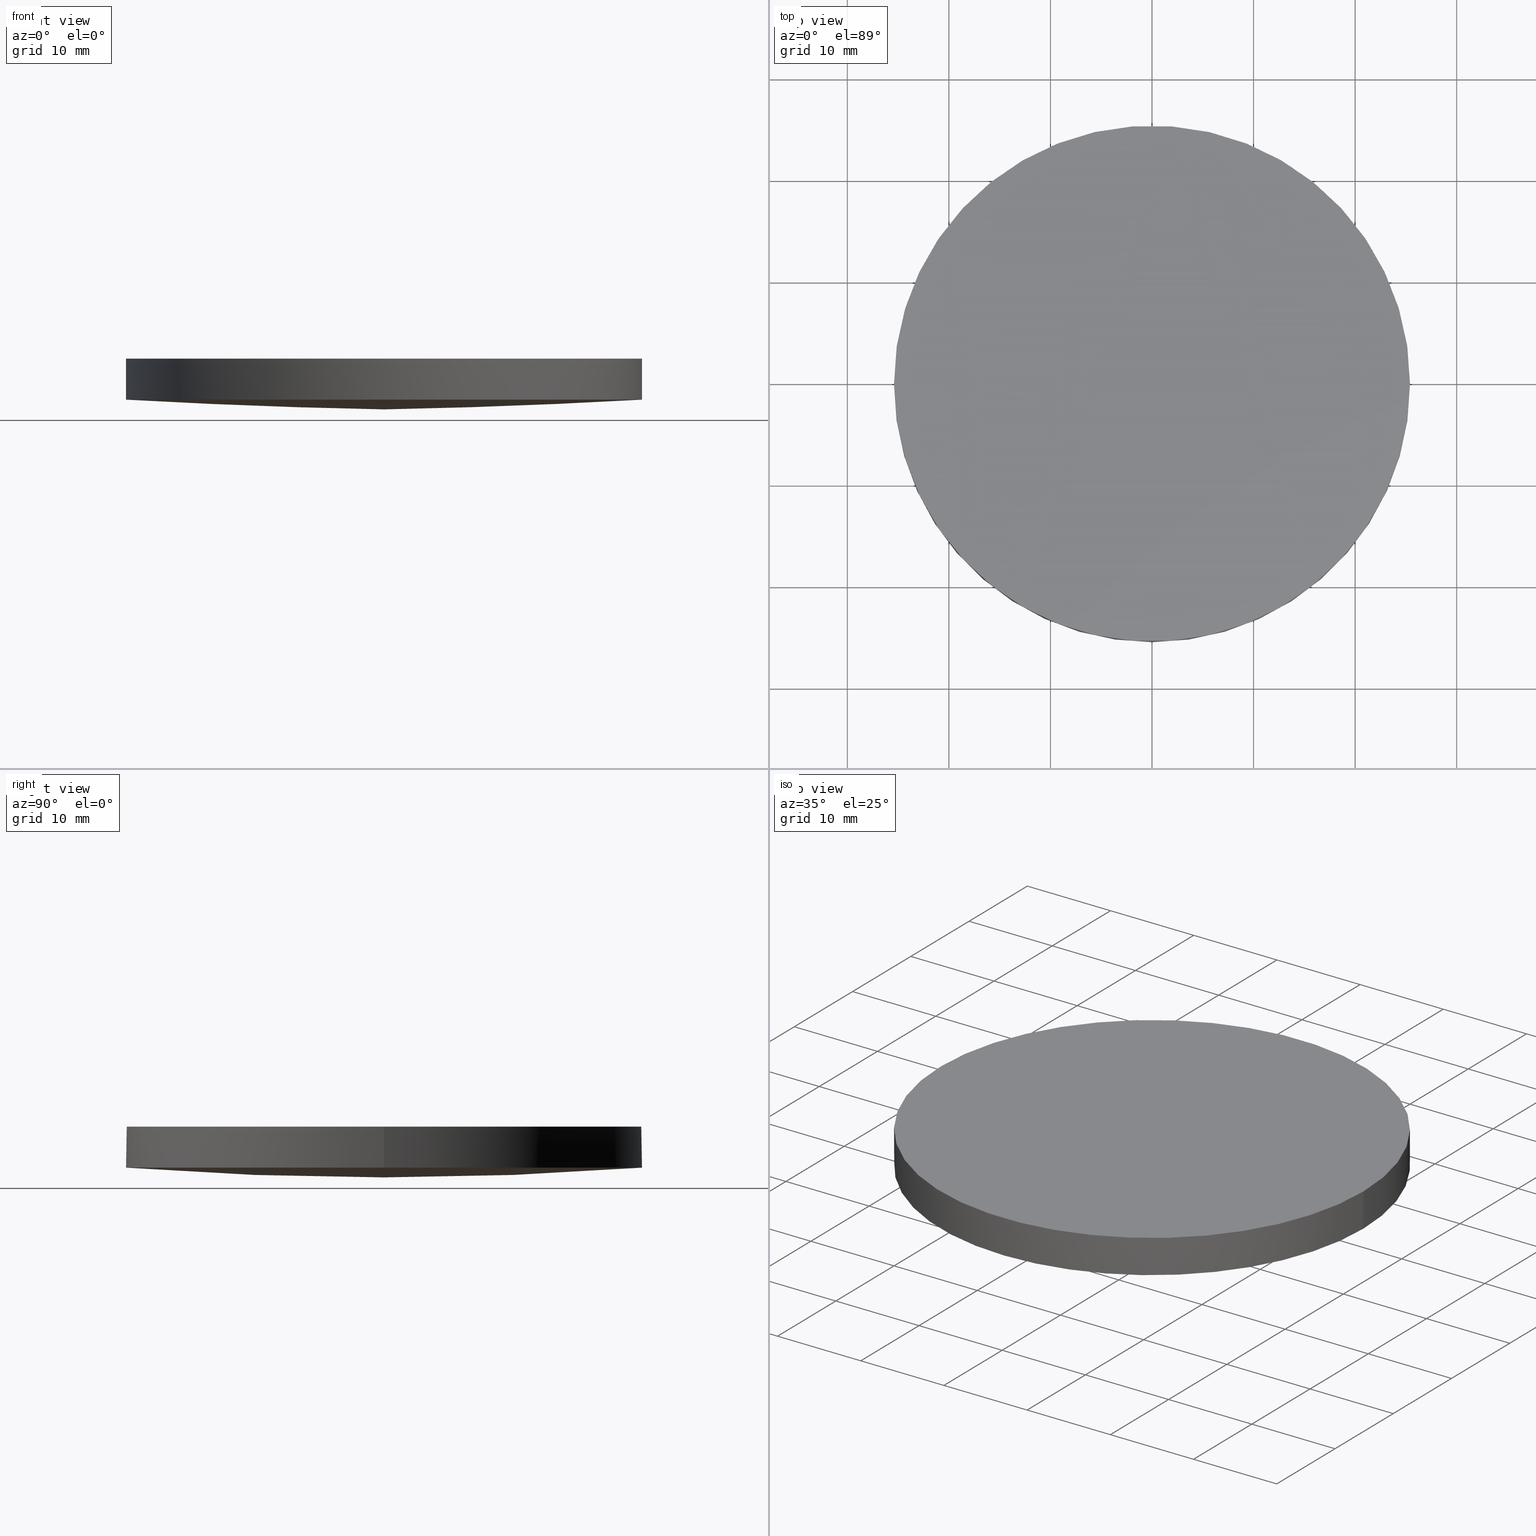
[diagram: canonical four-view strip — front | top / right | iso, engineering-drawing reading convention]
A machine part, canonical four-view strip (front | top / right | iso — engineering-drawing reading convention). The complete STEP part file that produces these views, byte-faithful:
ISO-10303-21;
HEADER;
FILE_DESCRIPTION (( 'STEP AP203' ),
    '1' );
FILE_NAME ('110-0528E BK7 pl-cx 50.8 F650.STEP',
    '2018-12-21T07:01:52',
    ( '' ),
    ( '' ),
    'SwSTEP 2.0',
    'SolidWorks 2017',
    '' );
FILE_SCHEMA (( 'CONFIG_CONTROL_DESIGN' ));
ENDSEC;

DATA;
#1 = CARTESIAN_POINT ( 'NONE',  ( -1.873501354054951700E-013, -8.584722755512725500, -0.3276764864876301500 ) ) ;
#2 = DIRECTION ( 'NONE',  ( 0.0000000000000000000, 0.0000000000000000000, 1.000000000000000000 ) ) ;
#3 = VECTOR ( 'NONE', #109, 1000.000000000000000 ) ;
#4 = CC_DESIGN_PERSON_AND_ORGANIZATION_ASSIGNMENT ( #15, #210, ( #28 ) ) ;
#5 = ORIENTED_EDGE ( 'NONE', *, *, #208, .T. ) ;
#6 = MECHANICAL_CONTEXT ( 'NONE', #74, 'mechanical' ) ;
#7 = DIRECTION ( 'NONE',  ( -0.0000000000000000000, -0.0000000000000000000, -1.000000000000000000 ) ) ;
#8 =( NAMED_UNIT ( * ) SI_UNIT ( $, .STERADIAN. ) SOLID_ANGLE_UNIT ( ) );
#9 = COORDINATED_UNIVERSAL_TIME_OFFSET ( 2, 0, .AHEAD. ) ;
#10 = CC_DESIGN_PERSON_AND_ORGANIZATION_ASSIGNMENT ( #70, #141, ( #162 ) ) ;
#11 = CIRCLE ( 'NONE', #179, 25.39999999999999900 ) ;
#12 = PRODUCT_DEFINITION ( 'UNKNOWN', '', #28, #149 ) ;
#13 = CC_DESIGN_DATE_AND_TIME_ASSIGNMENT ( #63, #25, ( #158 ) ) ;
#14 = CALENDAR_DATE ( 2018, 21, 12 ) ;
#15 = PERSON_AND_ORGANIZATION ( #140, #49 ) ;
#16 = DIRECTION ( 'NONE',  ( 1.000000000000000000, 0.0000000000000000000, -0.0000000000000000000 ) ) ;
#17 = CC_DESIGN_PERSON_AND_ORGANIZATION_ASSIGNMENT ( #169, #163, ( #12 ) ) ;
#18 = CARTESIAN_POINT ( 'NONE',  ( 25.39999999999999900, 4.884981308350691100E-015, 0.9580038127301360200 ) ) ;
#19 = CALENDAR_DATE ( 2018, 21, 12 ) ;
#20 = VERTEX_POINT ( 'NONE', #99 ) ;
#21 = CARTESIAN_POINT ( 'NONE',  ( -25.57693894049751600, -8.584722755512716600, 0.6427944779652767800 ) ) ;
#22 = APPROVAL_ROLE ( '' ) ;
#23 = CIRCLE ( 'NONE', #133, 25.39999999999999900 ) ;
#24 = CC_DESIGN_DATE_AND_TIME_ASSIGNMENT ( #98, #188, ( #12 ) ) ;
#25 = DATE_TIME_ROLE ( 'classification_date' ) ;
#26 = FACE_OUTER_BOUND ( 'NONE', #79, .T. ) ;
#27 = CC_DESIGN_SECURITY_CLASSIFICATION ( #158, ( #28 ) ) ;
#28 = PRODUCT_DEFINITION_FORMATION_WITH_SPECIFIED_SOURCE ( 'ANY', '', #162, .NOT_KNOWN. ) ;
#29 = COORDINATED_UNIVERSAL_TIME_OFFSET ( 2, 0, .AHEAD. ) ;
#30 = CARTESIAN_POINT ( 'NONE',  ( -1.014902637567881100E-013, 8.584722755512789400, -0.3276764864876560700 ) ) ;
#31 = CARTESIAN_POINT ( 'NONE',  ( 9.992007221626412800E-016, 4.884981308350691100E-015, 0.9580038127301360200 ) ) ;
#32 = CARTESIAN_POINT ( 'NONE',  ( -1.074086461654604000E-013, -8.584722755512723700, -0.3276764864876584600 ) ) ;
#33 = CARTESIAN_POINT ( 'NONE',  ( 8.502774397849192300, -25.70421176713262300, 0.9811226337366697500 ) ) ;
#34 = CIRCLE ( 'NONE', #106, 25.39999999999999900 ) ;
#35 = DIRECTION ( 'NONE',  ( 1.000000000000000000, 8.881784197001252300E-016, 0.0000000000000000000 ) ) ;
#36 = ORIENTED_EDGE ( 'NONE', *, *, #94, .F. ) ;
#37 = APPROVAL ( #229, 'UNSPECIFIED' ) ;
#38 = ORIENTED_EDGE ( 'NONE', *, *, #45, .T. ) ;
#39 = CARTESIAN_POINT ( 'NONE',  ( 9.992007221626412800E-016, 4.884981308350691100E-015, 0.9580038127301360200 ) ) ;
#40 = DATE_AND_TIME ( #19, #113 ) ;
#41 = CARTESIAN_POINT ( 'NONE',  ( 9.992007221626412800E-016, 4.884981308350691100E-015, 0.9580038127301360200 ) ) ;
#42 = ORIENTED_EDGE ( 'NONE', *, *, #77, .T. ) ;
#43 = VERTEX_POINT ( 'NONE', #135 ) ;
#44 = CARTESIAN_POINT ( 'NONE',  ( 25.47776166552035400, 25.70421176713266900, 1.947830494797017500 ) ) ;
#45 = EDGE_CURVE ( 'NONE', #122, #43, #230, .T. ) ;
#46 = CARTESIAN_POINT ( 'NONE',  ( 25.57693894049765900, -8.584722755512730800, 0.6427944779652738900 ) ) ;
#47 = ORIENTED_EDGE ( 'NONE', *, *, #199, .F. ) ;
#48 = CARTESIAN_POINT ( 'NONE',  ( 17.06560842586069200, 8.584722755512782300, -0.004031016492933363500 ) ) ;
#49 = ORGANIZATION ( 'UNSPECIFIED', 'UNSPECIFIED', '' ) ;
#50 = AXIS2_PLACEMENT_3D ( 'NONE', #187, #166, #143 ) ;
#51 = CARTESIAN_POINT ( 'NONE',  ( -25.47776166552019800, -25.70421176713260900, 1.947830494797020400 ) ) ;
#52 = ORIENTED_EDGE ( 'NONE', *, *, #196, .F. ) ;
#53 = PLANE ( 'NONE',  #152 ) ;
#54 = DIRECTION ( 'NONE',  ( 1.000000000000000000, 0.0000000000000000000, 0.0000000000000000000 ) ) ;
#55 = CARTESIAN_POINT ( 'NONE',  ( -8.502774397849329100, 25.70421176713268700, 0.9811226337367113800 ) ) ;
#56 = COORDINATED_UNIVERSAL_TIME_OFFSET ( 2, 0, .AHEAD. ) ;
#57 = CALENDAR_DATE ( 2018, 21, 12 ) ;
#58 = DIRECTION ( 'NONE',  ( 1.000000000000000000, 0.0000000000000000000, 0.0000000000000000000 ) ) ;
#59 = CARTESIAN_POINT ( 'NONE',  ( 25.39999999999999900, 4.884981308350691100E-015, 0.9580038127301360200 ) ) ;
#60 = APPROVAL_STATUS ( 'not_yet_approved' ) ;
#61 = LINE ( 'NONE', #145, #3 ) ;
#62 = ADVANCED_FACE ( 'NONE', ( #110 ), #92, .T. ) ;
#63 = DATE_AND_TIME ( #172, #155 ) ;
#64 = AXIS2_PLACEMENT_3D ( 'NONE', #178, #157, #35 ) ;
#65 = VERTEX_POINT ( 'NONE', #192 ) ;
#66 = CARTESIAN_POINT ( 'NONE',  ( -9.474325511732668600E-014, 25.70421176713268000, 0.9811226337366751900 ) ) ;
#67 = CARTESIAN_POINT ( 'NONE',  ( 25.57693894049766200, 8.584722755512780500, 0.6427944779652762200 ) ) ;
#68 = EDGE_LOOP ( 'NONE', ( #5, #38, #42 ) ) ;
#69 = CARTESIAN_POINT ( 'NONE',  ( 1.136868377216160000E-013, 5.684341886080800200E-014, 337.1999999999999900 ) ) ;
#70 = PERSON_AND_ORGANIZATION ( #140, #49 ) ;
#71 = ORIENTED_EDGE ( 'NONE', *, *, #168, .F. ) ;
#72 = DIRECTION ( 'NONE',  ( -0.0000000000000000000, -0.0000000000000000000, -1.000000000000000000 ) ) ;
#73 = CARTESIAN_POINT ( 'NONE',  ( -1.123740399387198300E-013, -25.40000000000002700, 0.9580038127301410100 ) ) ;
#74 = APPLICATION_CONTEXT ( 'configuration controlled 3d designs of mechanical parts and assemblies' ) ;
#75 = ADVANCED_FACE ( 'NONE', ( #26 ), #176, .T. ) ;
#76 = CARTESIAN_POINT ( 'NONE',  ( -25.57693894049750600, 8.584722755512796500, 0.6427944779652790000 ) ) ;
#77 = EDGE_CURVE ( 'NONE', #43, #233, #220, .T. ) ;
#78 = PERSON_AND_ORGANIZATION ( #140, #49 ) ;
#79 = EDGE_LOOP ( 'NONE', ( #52, #114, #227, #36, #223 ) ) ;
#80 = PERSON_AND_ORGANIZATION_ROLE ( 'design_supplier' ) ;
#81 = FACE_OUTER_BOUND ( 'NONE', #88, .T. ) ;
#82 = UNCERTAINTY_MEASURE_WITH_UNIT (LENGTH_MEASURE( 1.000000000000000100E-005 ), #93, 'distance_accuracy_value', 'NONE');
#83 = APPROVAL_DATE_TIME ( #150, #37 ) ;
#84 = ORIENTED_EDGE ( 'NONE', *, *, #45, .F. ) ;
#85 = CARTESIAN_POINT ( 'NONE',  ( 25.47776166552033300, -25.70421176713262700, 1.947830494797017500 ) ) ;
#86 = LINE ( 'NONE', #18, #173 ) ;
#87 = LOCAL_TIME ( 9, 1, 52.00000000000000000, #148 ) ;
#88 = EDGE_LOOP ( 'NONE', ( #215, #214 ) ) ;
#89 = EDGE_CURVE ( 'NONE', #20, #65, #160, .T. ) ;
#90 = CARTESIAN_POINT ( 'NONE',  ( -16.99943473152439200, -25.70421176713261600, 1.303513134329187900 ) ) ;
#91 = CARTESIAN_POINT ( 'NONE',  ( -8.535873145125346900, 8.584722755512789400, -0.3276764864876200400 ) ) ;
#92 =( BOUNDED_SURFACE ( )  B_SPLINE_SURFACE ( 3, 3, ( 
 ( #177, #33, #100, #85 ),
 ( #32, #153, #234, #46 ),
 ( #30, #175, #48, #67 ),
 ( #66, #134, #195, #44 ) ),
 .UNSPECIFIED., .F., .F., .F. ) 
 B_SPLINE_SURFACE_WITH_KNOTS ( ( 4, 4 ),
 ( 4, 4 ),
 ( 0.0000000000000000000, 1.000000000000000000 ),
 ( 0.0000000000000000000, 1.000000000000000000 ),
 .UNSPECIFIED. ) 
 GEOMETRIC_REPRESENTATION_ITEM ( )  RATIONAL_B_SPLINE_SURFACE ( (
 ( 1.000000000000000000, 0.9995206220238213000, 0.9995206220238213000, 1.000000000000000000),
 ( 0.9980602557656450500, 0.9975818076601317100, 0.9975818076601317100, 0.9980602557656450500),
 ( 0.9980602557656450500, 0.9975818076601317100, 0.9975818076601317100, 0.9980602557656450500),
 ( 1.000000000000000000, 0.9995206220238213000, 0.9995206220238213000, 1.000000000000000000) ) ) 
 REPRESENTATION_ITEM ( '' )  SURFACE ( )  );
#93 =( LENGTH_UNIT ( ) NAMED_UNIT ( * ) SI_UNIT ( .MILLI., .METRE. ) );
#94 = EDGE_CURVE ( 'NONE', #233, #20, #86, .T. ) ;
#95 = APPROVAL_PERSON_ORGANIZATION ( #156, #121, #130 ) ;
#96 = APPROVAL_PERSON_ORGANIZATION ( #144, #126, #22 ) ;
#97 =( GEOMETRIC_REPRESENTATION_CONTEXT ( 3 ) GLOBAL_UNCERTAINTY_ASSIGNED_CONTEXT ( ( #82 ) ) GLOBAL_UNIT_ASSIGNED_CONTEXT ( ( #93, #184, #8 ) ) REPRESENTATION_CONTEXT ( 'NONE', 'WORKASPACE' ) );
#98 = DATE_AND_TIME ( #204, #219 ) ;
#99 = CARTESIAN_POINT ( 'NONE',  ( 25.39999999999999900, 4.884981308350691100E-015, 4.999999999999999100 ) ) ;
#100 = CARTESIAN_POINT ( 'NONE',  ( 16.99943473152438100, -25.70421176713262700, 1.303513134329175700 ) ) ;
#101 = CARTESIAN_POINT ( 'NONE',  ( -8.535873145125357600, -8.584722755512720100, -0.3276764864876225400 ) ) ;
#102 = DATE_AND_TIME ( #14, #87 ) ;
#103 = AXIS2_PLACEMENT_3D ( 'NONE', #217, #138, #123 ) ;
#104 = DIRECTION ( 'NONE',  ( -0.0000000000000000000, -0.0000000000000000000, -1.000000000000000000 ) ) ;
#105 = FACE_OUTER_BOUND ( 'NONE', #165, .T. ) ;
#106 = AXIS2_PLACEMENT_3D ( 'NONE', #183, #104, #216 ) ;
#107 = DIRECTION ( 'NONE',  ( 1.000000000000000000, 0.0000000000000000000, 0.0000000000000000000 ) ) ;
#108 = COORDINATED_UNIVERSAL_TIME_OFFSET ( 2, 0, .AHEAD. ) ;
#109 = DIRECTION ( 'NONE',  ( 0.0000000000000000000, 0.0000000000000000000, 1.000000000000000000 ) ) ;
#110 = FACE_OUTER_BOUND ( 'NONE', #68, .T. ) ;
#111 = AXIS2_PLACEMENT_3D ( 'NONE', #182, #72, #200 ) ;
#112 = CC_DESIGN_APPROVAL ( #37, ( #158 ) ) ;
#113 = LOCAL_TIME ( 9, 1, 52.00000000000000000, #29 ) ;
#114 = ORIENTED_EDGE ( 'NONE', *, *, #199, .T. ) ;
#115 = ADVANCED_FACE ( 'NONE', ( #81 ), #53, .T. ) ;
#116 = MANIFOLD_SOLID_BREP ( 'Imported1', #127 ) ;
#117 = AXIS2_PLACEMENT_3D ( 'NONE', #31, #154, #137 ) ;
#118 = EDGE_LOOP ( 'NONE', ( #47, #71, #201, #151, #189 ) ) ;
#119 = CARTESIAN_POINT ( 'NONE',  ( -8.502774397849348600, -25.70421176713262000, 0.9811226337367113800 ) ) ;
#120 = CARTESIAN_POINT ( 'NONE',  ( -25.39999999999999900, 7.995584178184967200E-015, 0.9580038127301360200 ) ) ;
#121 = APPROVAL ( #60, 'UNSPECIFIED' ) ;
#122 = VERTEX_POINT ( 'NONE', #73 ) ;
#123 = DIRECTION ( 'NONE',  ( 1.000000000000000000, 0.0000000000000000000, 0.0000000000000000000 ) ) ;
#124 = APPROVAL_STATUS ( 'not_yet_approved' ) ;
#125 = CARTESIAN_POINT ( 'NONE',  ( -16.99943473152437100, 25.70421176713269100, 1.303513134329188100 ) ) ;
#126 = APPROVAL ( #124, 'UNSPECIFIED' ) ;
#127 = CLOSED_SHELL ( 'NONE', ( #62, #75, #191, #211, #115 ) ) ;
#128 = PRODUCT_DEFINITION_SHAPE ( 'NONE', 'NONE',  #12 ) ;
#129 = SECURITY_CLASSIFICATION_LEVEL ( 'unclassified' ) ;
#130 = APPROVAL_ROLE ( '' ) ;
#131 = EDGE_CURVE ( 'NONE', #65, #20, #34, .T. ) ;
#132 = VERTEX_POINT ( 'NONE', #120 ) ;
#133 = AXIS2_PLACEMENT_3D ( 'NONE', #225, #224, #58 ) ;
#134 = CARTESIAN_POINT ( 'NONE',  ( 8.502774397849208300, 25.70421176713268400, 0.9811226337366697500 ) ) ;
#135 = CARTESIAN_POINT ( 'NONE',  ( -9.486305939089213800E-014, 25.40000000000008700, 0.9580038127301410100 ) ) ;
#136 = FACE_OUTER_BOUND ( 'NONE', #118, .T. ) ;
#137 = DIRECTION ( 'NONE',  ( 1.000000000000000000, 0.0000000000000000000, 0.0000000000000000000 ) ) ;
#138 = DIRECTION ( 'NONE',  ( -0.0000000000000000000, -0.0000000000000000000, -1.000000000000000000 ) ) ;
#139 = AXIS2_PLACEMENT_3D ( 'NONE', #69, #190, #197 ) ;
#140 = PERSON ( 'UNSPECIFIED', 'UNSPECIFIED', 'UNSPECIFIED', ('UNSPECIFIED'), ('UNSPECIFIED'), ('UNSPECIFIED') ) ;
#141 = PERSON_AND_ORGANIZATION_ROLE ( 'design_owner' ) ;
#142 = AXIS2_PLACEMENT_3D ( 'NONE', #39, #185, #54 ) ;
#143 = DIRECTION ( 'NONE',  ( 1.000000000000000000, 0.0000000000000000000, 0.0000000000000000000 ) ) ;
#144 = PERSON_AND_ORGANIZATION ( #140, #49 ) ;
#145 = CARTESIAN_POINT ( 'NONE',  ( -25.39999999999999900, 7.995584178184967200E-015, 0.9580038127301360200 ) ) ;
#146 = PERSON_AND_ORGANIZATION_ROLE ( 'classification_officer' ) ;
#147 = CC_DESIGN_PERSON_AND_ORGANIZATION_ASSIGNMENT ( #78, #80, ( #28 ) ) ;
#148 = COORDINATED_UNIVERSAL_TIME_OFFSET ( 2, 0, .AHEAD. ) ;
#149 = DESIGN_CONTEXT ( 'detailed design', #167, 'design' ) ;
#150 = DATE_AND_TIME ( #57, #198 ) ;
#151 = ORIENTED_EDGE ( 'NONE', *, *, #94, .T. ) ;
#152 = AXIS2_PLACEMENT_3D ( 'NONE', #218, #180, #16 ) ;
#153 = CARTESIAN_POINT ( 'NONE',  ( 8.535873145125210100, -8.584722755512725500, -0.3276764864876639000 ) ) ;
#154 = DIRECTION ( 'NONE',  ( 0.0000000000000000000, 0.0000000000000000000, 1.000000000000000000 ) ) ;
#155 = LOCAL_TIME ( 9, 1, 52.00000000000000000, #108 ) ;
#156 = PERSON_AND_ORGANIZATION ( #140, #49 ) ;
#157 = DIRECTION ( 'NONE',  ( -0.0000000000000000000, -0.0000000000000000000, -1.000000000000000000 ) ) ;
#158 = SECURITY_CLASSIFICATION ( '', '', #129 ) ;
#159 = PERSON_AND_ORGANIZATION ( #140, #49 ) ;
#160 = CIRCLE ( 'NONE', #103, 25.39999999999999900 ) ;
#161 = CARTESIAN_POINT ( 'NONE',  ( -25.47776166552018000, 25.70421176713268700, 1.947830494797020400 ) ) ;
#162 = PRODUCT ( '110-0528E BK7 pl-cx 50.8 F650', '110-0528E BK7 pl-cx 50.8 F650', '', ( #6 ) ) ;
#163 = PERSON_AND_ORGANIZATION_ROLE ( 'creator' ) ;
#164 = PRODUCT_RELATED_PRODUCT_CATEGORY ( 'detail', '', ( #162 ) ) ;
#165 = EDGE_LOOP ( 'NONE', ( #84, #193, #235 ) ) ;
#166 = DIRECTION ( 'NONE',  ( 0.0000000000000000000, 0.0000000000000000000, 1.000000000000000000 ) ) ;
#167 = APPLICATION_CONTEXT ( 'configuration controlled 3d designs of mechanical parts and assemblies' ) ;
#168 = EDGE_CURVE ( 'NONE', #122, #132, #209, .T. ) ;
#169 = PERSON_AND_ORGANIZATION ( #140, #49 ) ;
#170 = APPROVAL_ROLE ( '' ) ;
#171 = CYLINDRICAL_SURFACE ( 'NONE', #142, 25.39999999999999900 ) ;
#172 = CALENDAR_DATE ( 2018, 21, 12 ) ;
#173 = VECTOR ( 'NONE', #2, 1000.000000000000000 ) ;
#174 = CC_DESIGN_PERSON_AND_ORGANIZATION_ASSIGNMENT ( #232, #146, ( #158 ) ) ;
#175 = CARTESIAN_POINT ( 'NONE',  ( 8.535873145125215400, 8.584722755512784100, -0.3276764864876615100 ) ) ;
#176 = CYLINDRICAL_SURFACE ( 'NONE', #117, 25.39999999999999900 ) ;
#177 = CARTESIAN_POINT ( 'NONE',  ( -1.124639618988818800E-013, -25.70421176713261600, 0.9811226337366751900 ) ) ;
#178 = CARTESIAN_POINT ( 'NONE',  ( 9.992007221626412800E-016, 4.884981308350691100E-015, 0.9580038127301360200 ) ) ;
#179 = AXIS2_PLACEMENT_3D ( 'NONE', #41, #7, #107 ) ;
#180 = DIRECTION ( 'NONE',  ( 0.0000000000000000000, 0.0000000000000000000, 1.000000000000000000 ) ) ;
#181 = APPROVAL_DATE_TIME ( #102, #121 ) ;
#182 = CARTESIAN_POINT ( 'NONE',  ( 9.992007221626412800E-016, 4.884981308350691100E-015, 0.9580038127301360200 ) ) ;
#183 = CARTESIAN_POINT ( 'NONE',  ( 9.992007221626412800E-016, 4.884981308350691100E-015, 4.999999999999999100 ) ) ;
#184 =( NAMED_UNIT ( * ) PLANE_ANGLE_UNIT ( ) SI_UNIT ( $, .RADIAN. ) );
#185 = DIRECTION ( 'NONE',  ( 0.0000000000000000000, 0.0000000000000000000, 1.000000000000000000 ) ) ;
#186 = APPLICATION_PROTOCOL_DEFINITION ( 'international standard', 'config_control_design', 1994, #74 ) ;
#187 = CARTESIAN_POINT ( 'NONE',  ( 0.0000000000000000000, 0.0000000000000000000, 0.0000000000000000000 ) ) ;
#188 = DATE_TIME_ROLE ( 'creation_date' ) ;
#189 = ORIENTED_EDGE ( 'NONE', *, *, #89, .T. ) ;
#190 = DIRECTION ( 'NONE',  ( 1.000000000000000000, -3.447043414926700000E-016, -6.462767585563399900E-016 ) ) ;
#191 = ADVANCED_FACE ( 'NONE', ( #105 ), #194, .T. ) ;
#192 = CARTESIAN_POINT ( 'NONE',  ( -25.39999999999999900, 7.995584178184967200E-015, 4.999999999999999100 ) ) ;
#193 = ORIENTED_EDGE ( 'NONE', *, *, #168, .T. ) ;
#194 =( BOUNDED_SURFACE ( )  B_SPLINE_SURFACE ( 3, 3, ( 
 ( #51, #90, #119, #221 ),
 ( #21, #202, #101, #1 ),
 ( #76, #205, #91, #203 ),
 ( #161, #125, #55, #222 ) ),
 .UNSPECIFIED., .F., .F., .T. ) 
 B_SPLINE_SURFACE_WITH_KNOTS ( ( 4, 4 ),
 ( 4, 4 ),
 ( 0.0000000000000000000, 1.000000000000000000 ),
 ( 0.0000000000000000000, 1.000000000000000000 ),
 .UNSPECIFIED. ) 
 GEOMETRIC_REPRESENTATION_ITEM ( )  RATIONAL_B_SPLINE_SURFACE ( (
 ( 1.000000000000000000, 0.9995206220238213000, 0.9995206220238213000, 1.000000000000000000),
 ( 0.9980602557656450500, 0.9975818076601317100, 0.9975818076601317100, 0.9980602557656450500),
 ( 0.9980602557656450500, 0.9975818076601317100, 0.9975818076601317100, 0.9980602557656450500),
 ( 1.000000000000000000, 0.9995206220238213000, 0.9995206220238213000, 1.000000000000000000) ) ) 
 REPRESENTATION_ITEM ( '' )  SURFACE ( )  );
#195 = CARTESIAN_POINT ( 'NONE',  ( 16.99943473152439900, 25.70421176713268000, 1.303513134329175500 ) ) ;
#196 = EDGE_CURVE ( 'NONE', #132, #43, #11, .T. ) ;
#197 = DIRECTION ( 'NONE',  ( -3.447043414926702500E-016, -1.000000000000000000, -3.292476348235933000E-016 ) ) ;
#198 = LOCAL_TIME ( 9, 1, 52.00000000000000000, #9 ) ;
#199 = EDGE_CURVE ( 'NONE', #132, #65, #61, .T. ) ;
#200 = DIRECTION ( 'NONE',  ( 1.000000000000000000, 0.0000000000000000000, 0.0000000000000000000 ) ) ;
#201 = ORIENTED_EDGE ( 'NONE', *, *, #208, .F. ) ;
#202 = CARTESIAN_POINT ( 'NONE',  ( -17.06560842586068500, -8.584722755512718400, -0.004031016492923715800 ) ) ;
#203 = CARTESIAN_POINT ( 'NONE',  ( -1.769417945496343500E-013, 8.584722755512787600, -0.3276764864876275400 ) ) ;
#204 = CALENDAR_DATE ( 2018, 21, 12 ) ;
#205 = CARTESIAN_POINT ( 'NONE',  ( -17.06560842586067700, 8.584722755512791200, -0.004031016492921438200 ) ) ;
#206 = APPROVAL_PERSON_ORGANIZATION ( #159, #37, #170 ) ;
#207 = APPLICATION_PROTOCOL_DEFINITION ( 'international standard', 'config_control_design', 1994, #167 ) ;
#208 = EDGE_CURVE ( 'NONE', #233, #122, #23, .T. ) ;
#209 = CIRCLE ( 'NONE', #111, 25.39999999999999900 ) ;
#210 = PERSON_AND_ORGANIZATION_ROLE ( 'creator' ) ;
#211 = ADVANCED_FACE ( 'NONE', ( #136 ), #171, .T. ) ;
#212 = APPROVAL_DATE_TIME ( #40, #126 ) ;
#213 = CC_DESIGN_APPROVAL ( #126, ( #12 ) ) ;
#214 = ORIENTED_EDGE ( 'NONE', *, *, #131, .F. ) ;
#215 = ORIENTED_EDGE ( 'NONE', *, *, #89, .F. ) ;
#216 = DIRECTION ( 'NONE',  ( 1.000000000000000000, 0.0000000000000000000, 0.0000000000000000000 ) ) ;
#217 = CARTESIAN_POINT ( 'NONE',  ( 9.992007221626412800E-016, 4.884981308350691100E-015, 4.999999999999999100 ) ) ;
#218 = CARTESIAN_POINT ( 'NONE',  ( 0.0000000000000000000, 52.02000000000000300, 5.000000000000000000 ) ) ;
#219 = LOCAL_TIME ( 9, 1, 52.00000000000000000, #56 ) ;
#220 = CIRCLE ( 'NONE', #64, 25.39999999999999900 ) ;
#221 = CARTESIAN_POINT ( 'NONE',  ( -1.908195823574487800E-013, -25.70421176713262000, 0.9811226337367038300 ) ) ;
#222 = CARTESIAN_POINT ( 'NONE',  ( -1.700029006457271000E-013, 25.70421176713267600, 0.9811226337367038300 ) ) ;
#223 = ORIENTED_EDGE ( 'NONE', *, *, #77, .F. ) ;
#224 = DIRECTION ( 'NONE',  ( -0.0000000000000000000, -0.0000000000000000000, -1.000000000000000000 ) ) ;
#225 = CARTESIAN_POINT ( 'NONE',  ( 9.992007221626412800E-016, 4.884981308350691100E-015, 0.9580038127301360200 ) ) ;
#226 = SHAPE_DEFINITION_REPRESENTATION ( #128, #231 ) ;
#227 = ORIENTED_EDGE ( 'NONE', *, *, #131, .T. ) ;
#228 = CC_DESIGN_APPROVAL ( #121, ( #28 ) ) ;
#229 = APPROVAL_STATUS ( 'not_yet_approved' ) ;
#230 = CIRCLE ( 'NONE', #139, 337.1999999999999900 ) ;
#231 = ADVANCED_BREP_SHAPE_REPRESENTATION ( '110-0528E BK7 pl-cx 50.8 F650', ( #116, #50 ), #97 ) ;
#232 = PERSON_AND_ORGANIZATION ( #140, #49 ) ;
#233 = VERTEX_POINT ( 'NONE', #59 ) ;
#234 = CARTESIAN_POINT ( 'NONE',  ( 17.06560842586069200, -8.584722755512727200, -0.004031016492935858000 ) ) ;
#235 = ORIENTED_EDGE ( 'NONE', *, *, #196, .T. ) ;
ENDSEC;
END-ISO-10303-21;
